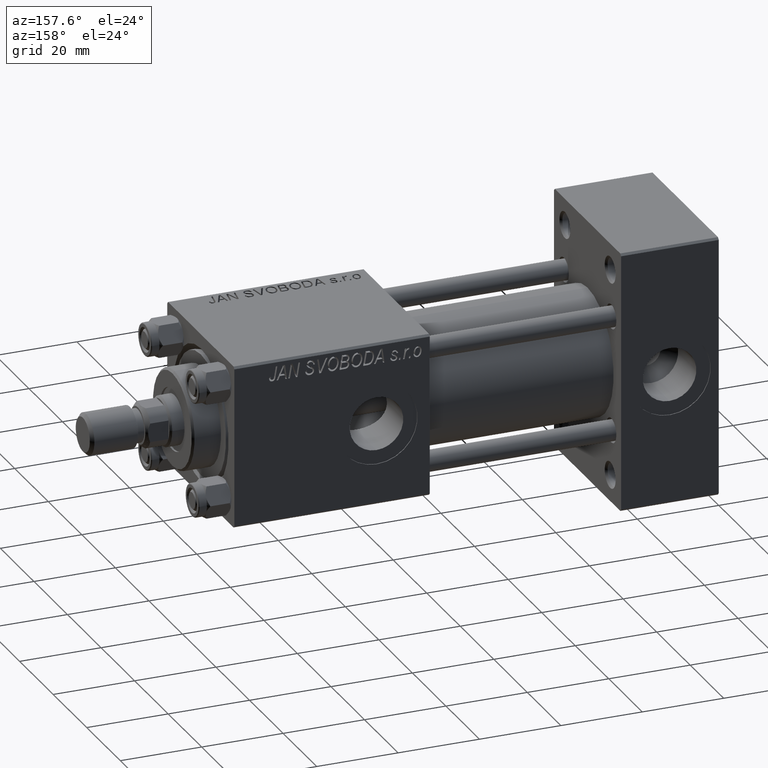
[diagram: clean part render]
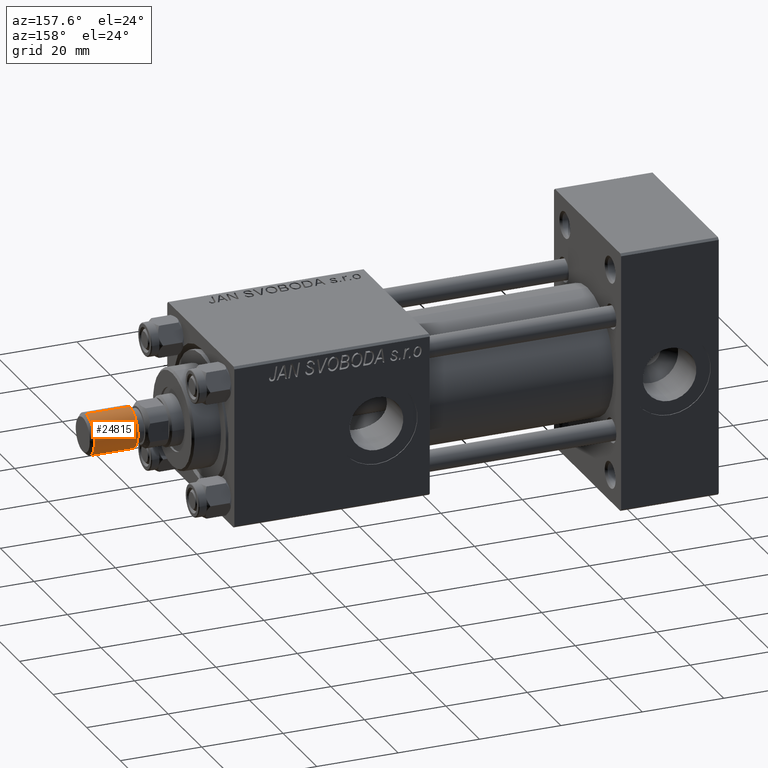
[diagram: same view with one face highlighted and labeled with its STEP entity id]
A machine part, auxiliary view. The second image highlights one B-rep face of the part: STEP entity #24815.
In plain terms, the highlighted cylindrical surface (edge-blend (fillet) strip) has radius 5 mm, axis along (1, -0, -0).
Its self-contained STEP definition (entity closure, byte-faithful):
#2279 = DIRECTION ( 'NONE',  ( -0.000000000000000000, -0.000000000000000000, -1.000000000000000000 ) ) ;
#2745 = CARTESIAN_POINT ( 'NONE',  ( 0.000000000000000000, 0.000000000000000000, 11.50000000000000000 ) ) ;
#3957 = DIRECTION ( 'NONE',  ( -1.000000000000000000, 0.000000000000000000, 0.000000000000000000 ) ) ;
#4099 = ORIENTED_EDGE ( 'NONE', *, *, #16474, .T. ) ;
#4353 = VECTOR ( 'NONE', #2279, 1000.000000000000000 ) ;
#5178 = EDGE_LOOP ( 'NONE', ( #26195, #28962, #4099, #31945 ) ) ;
#7458 = VERTEX_POINT ( 'NONE', #25860 ) ;
#7573 = DIRECTION ( 'NONE',  ( -0.000000000000000000, -0.000000000000000000, 1.000000000000000000 ) ) ;
#8285 = VECTOR ( 'NONE', #40844, 1000.000000000000000 ) ;
#8600 = EDGE_CURVE ( 'NONE', #16769, #7458, #44926, .T. ) ;
#11772 = AXIS2_PLACEMENT_3D ( 'NONE', #50126, #7573, #14715 ) ;
#14549 = EDGE_CURVE ( 'NONE', #16769, #44098, #32094, .T. ) ;
#14715 = DIRECTION ( 'NONE',  ( 1.000000000000000000, 0.000000000000000000, 0.000000000000000000 ) ) ;
#14850 = CARTESIAN_POINT ( 'NONE',  ( 5.000000000000000000, 6.123233995736766282E-16, 11.50000000000000000 ) ) ;
#15846 = AXIS2_PLACEMENT_3D ( 'NONE', #31220, #48868, #3957 ) ;
#16474 = EDGE_CURVE ( 'NONE', #7458, #38825, #33753, .T. ) ;
#16769 = VERTEX_POINT ( 'NONE', #14850 ) ;
#17656 = CARTESIAN_POINT ( 'NONE',  ( -5.000000000000000000, 0.000000000000000000, 11.50000000000000000 ) ) ;
#21620 = FACE_OUTER_BOUND ( 'NONE', #5178, .T. ) ;
#21875 = DIRECTION ( 'NONE',  ( 1.000000000000000000, 0.000000000000000000, 0.000000000000000000 ) ) ;
#21909 = EDGE_CURVE ( 'NONE', #44098, #38825, #37195, .T. ) ;
#24815 = ADVANCED_FACE ( 'NONE', ( #21620 ), #33336, .T. ) ;
#25860 = CARTESIAN_POINT ( 'NONE',  ( 5.000000000000000000, 6.123233995736766282E-16, 0.8000000000000020428 ) ) ;
#26195 = ORIENTED_EDGE ( 'NONE', *, *, #14549, .F. ) ;
#28962 = ORIENTED_EDGE ( 'NONE', *, *, #8600, .T. ) ;
#31220 = CARTESIAN_POINT ( 'NONE',  ( 0.000000000000000000, 0.000000000000000000, 11.50000000000000000 ) ) ;
#31945 = ORIENTED_EDGE ( 'NONE', *, *, #21909, .F. ) ;
#32094 = CIRCLE ( 'NONE', #42657, 5.000000000000000000 ) ;
#33336 = CYLINDRICAL_SURFACE ( 'NONE', #15846, 5.000000000000000000 ) ;
#33753 = CIRCLE ( 'NONE', #11772, 5.000000000000000000 ) ;
#37195 = LINE ( 'NONE', #41250, #4353 ) ;
#38825 = VERTEX_POINT ( 'NONE', #39131 ) ;
#39131 = CARTESIAN_POINT ( 'NONE',  ( -5.000000000000000000, 0.000000000000000000, 0.8000000000000020428 ) ) ;
#40591 = CARTESIAN_POINT ( 'NONE',  ( 5.000000000000000000, 6.123233995736766282E-16, 11.50000000000000000 ) ) ;
#40844 = DIRECTION ( 'NONE',  ( -0.000000000000000000, -0.000000000000000000, -1.000000000000000000 ) ) ;
#41250 = CARTESIAN_POINT ( 'NONE',  ( -5.000000000000000000, 0.000000000000000000, 11.50000000000000000 ) ) ;
#41472 = DIRECTION ( 'NONE',  ( 0.000000000000000000, 0.000000000000000000, 1.000000000000000000 ) ) ;
#42657 = AXIS2_PLACEMENT_3D ( 'NONE', #2745, #41472, #21875 ) ;
#44098 = VERTEX_POINT ( 'NONE', #17656 ) ;
#44926 = LINE ( 'NONE', #40591, #8285 ) ;
#48868 = DIRECTION ( 'NONE',  ( -0.000000000000000000, -0.000000000000000000, -1.000000000000000000 ) ) ;
#50126 = CARTESIAN_POINT ( 'NONE',  ( 0.000000000000000000, 0.000000000000000000, 0.8000000000000020428 ) ) ;